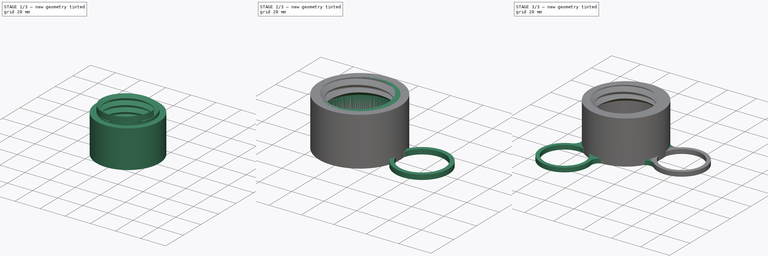
[diagram: build sequence overview — one tinted view per stage of 3, left to right]
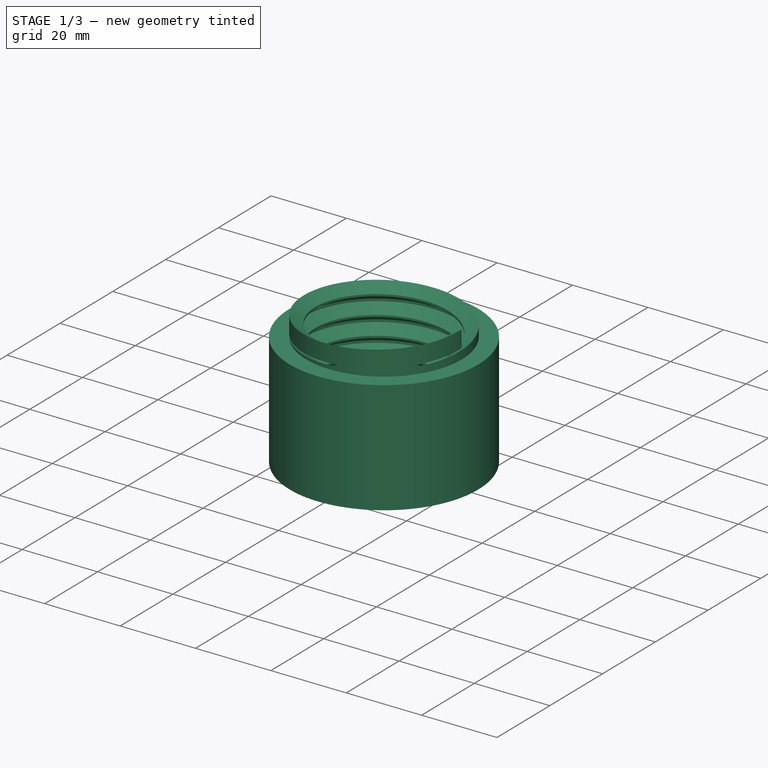
[diagram: stage 1 of 3 — iso view after this stage's code; geometry added in this stage tinted green]
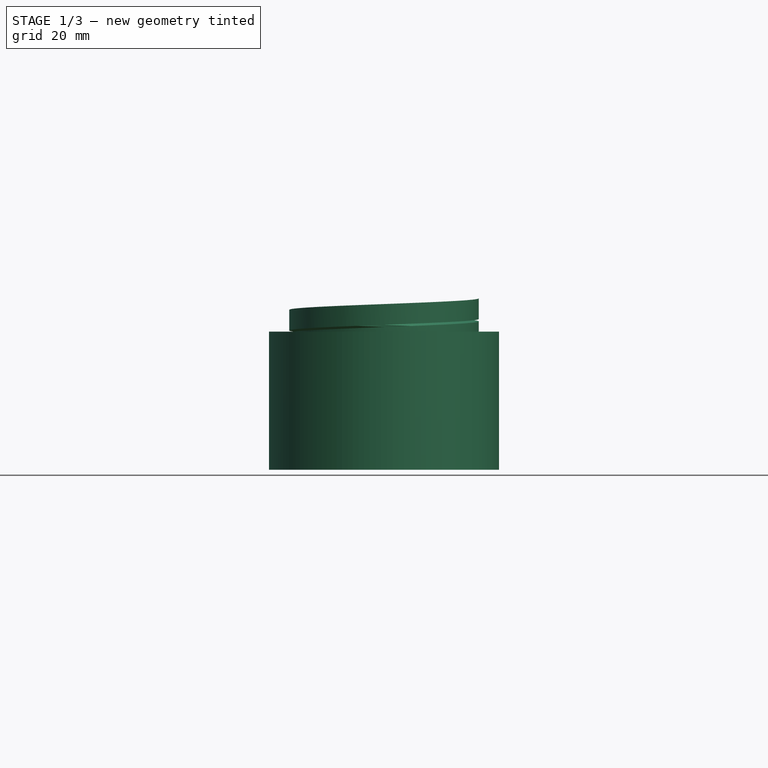
[diagram: stage 1 of 3 — front view after this stage's code; geometry added in this stage tinted green]
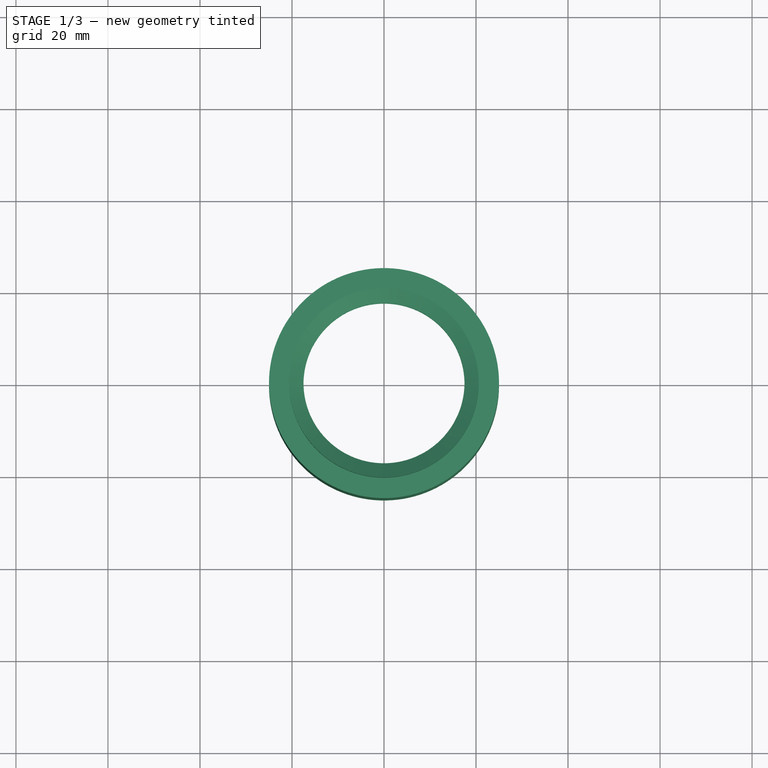
[diagram: stage 1 of 3 — top view after this stage's code; geometry added in this stage tinted green]
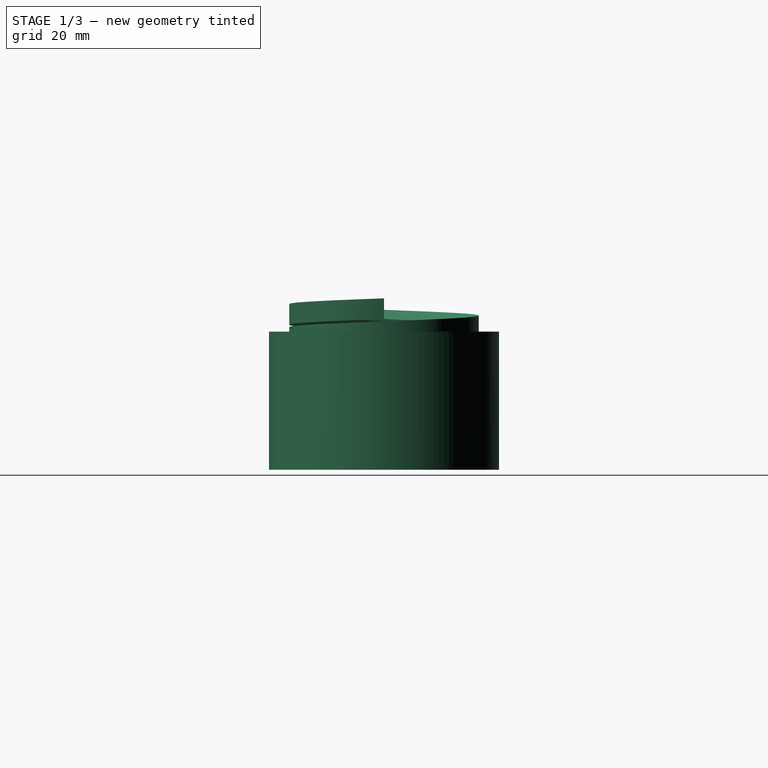
[diagram: stage 1 of 3 — right view after this stage's code; geometry added in this stage tinted green]
FCSTD DOCUMENT  (FreeCAD 2020.11.29R23076 +2859 (Git))
Label: nakretka-rzymska
License: All rights reserved
LicenseURL: http://en.wikipedia.org/wiki/All_rights_reserved
objects: Sketcher::SketchObject×4, PartDesign::Pad×2, Part::Helix×1, PartDesign::ShapeBinder×1, PartDesign::AdditivePipe×1, PartDesign::Mirrored×1, PartDesign::Groove×1, PartDesign::PolarPattern×1, PartDesign::Fillet×1, PartDesign::Body×1
note: 26 computed .brp shape members not serialized (recipe doc carries the construction recipe); baked Part::Feature solids carry a one-line shape summary decoded from their .brp

FEATURE [Sketcher::SketchObject] Sketch
  MapMode = 5
  Support = -> [XY_Plane]
  sketch-geometry (2):
    g0: Circle CenterX=0 CenterY=0 CenterZ=0 NormalX=0 NormalY=0 NormalZ=1 AngleXU=0 Radius=20.5
    g1: Circle CenterX=0 CenterY=0 CenterZ=0 NormalX=0 NormalY=0 NormalZ=1 AngleXU=0 Radius=25
  constraints (4):
    c: Coincident(g0,g-1)
    c: Diameter(g0) = 41
    c: Coincident(g1,g0)
    c: Diameter(g1) = 50
FEATURE [PartDesign::Pad] Pad
  ClaimChildren = false
  Direction = (1,1,1)
  Fit = 0
  FitJoin = 0
  InnerFit = 0
  InnerFitJoin = 0
  InnerTaperAngle = 0
  InnerTaperAngleRev = 0
  Length = 30
  Length2 = 100
  Midplane = true
  NewSolid = false
  Profile = -> Sketch
  Suppress = false
  Type = 0
FEATURE [Sketcher::SketchObject] Sketch001
  MapMode = 5
  Placement = pos=(0,0,0) rot=(1,0,0;1.5708rad)
  Support = -> [XZ_Plane]
  sketch-geometry (4):
    g0: LineSegment StartX=20.6 StartY=2.25 StartZ=0 EndX=20.6 EndY=-2.25 EndZ=0
    g1: LineSegment StartX=20.6 StartY=-2.25 StartZ=0 EndX=17.5 EndY=-0.25 EndZ=0
    g2: LineSegment StartX=17.5 StartY=-0.25 StartZ=0 EndX=17.5 EndY=0.25 EndZ=0
    g3: LineSegment StartX=17.5 StartY=0.25 StartZ=0 EndX=20.6 EndY=2.25 EndZ=0
  constraints (12):
    c: Vertical(g0)
    c: Coincident(g0,g1)
    c: Coincident(g1,g2)
    c: Coincident(g2,g3)
    c: Coincident(g3,g0)
    c: Vertical(g2)
    c: DistanceY(g2,g2) = 0.5
    c: DistanceY(g0,g0) = 4.5
    c: Equal(g1,g3)
    c: DistanceY(g-1,g2) = 0.25
    c: DistanceX(g0) = 20.6
    c: DistanceX(g1) = 17.5
FEATURE [Part::Helix] Helix  label="Helisa"
  Angle = 0
  AttacherType = Attacher::AttachEngine3D
  Height = 20
  LocalCoord = 0
  Pitch = 5
  Radius = 20.6
  Style = 1
FEATURE [PartDesign::ShapeBinder] ReferenceHelix
  Support = -> [Helix]
  TraceSupport = false
FEATURE [PartDesign::AdditivePipe] AdditivePipe
  AuxilleryCurvelinear = true
  AuxillerySpineTangent = false
  BaseFeature = -> Pad
  Binormal = (0,0,0)
  ClaimChildren = false
  Fit = 0
  FitJoin = 0
  InnerFit = 0
  InnerFitJoin = 0
  Mode = 2
  NewSolid = false
  Profile = -> Sketch001
  Spine = -> ReferenceHelix
  SpineTangent = false
  Suppress = false
  Transformation = 0
  Transition = 0
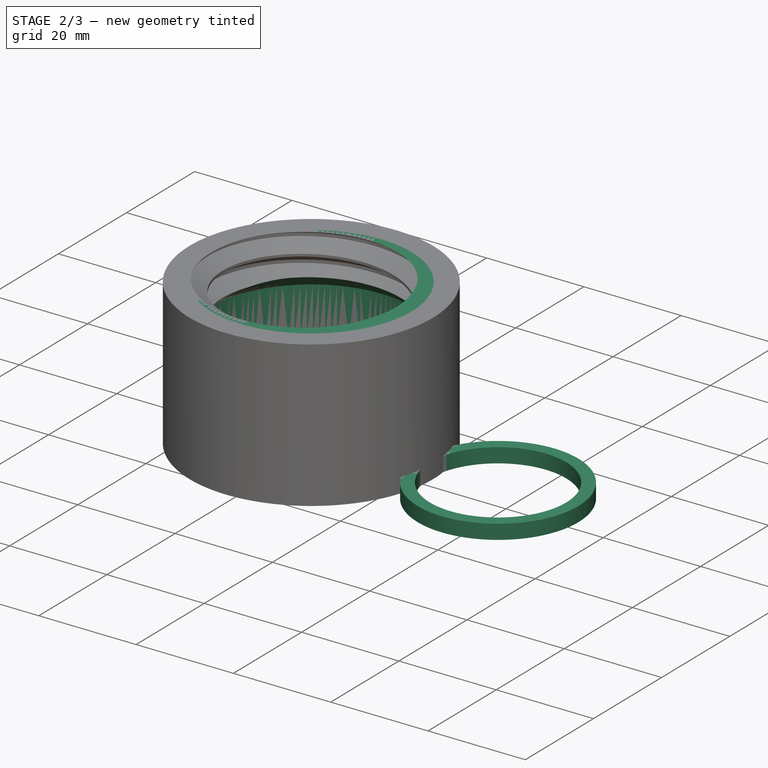
[diagram: stage 2 of 3 — iso view after this stage's code; geometry added in this stage tinted green]
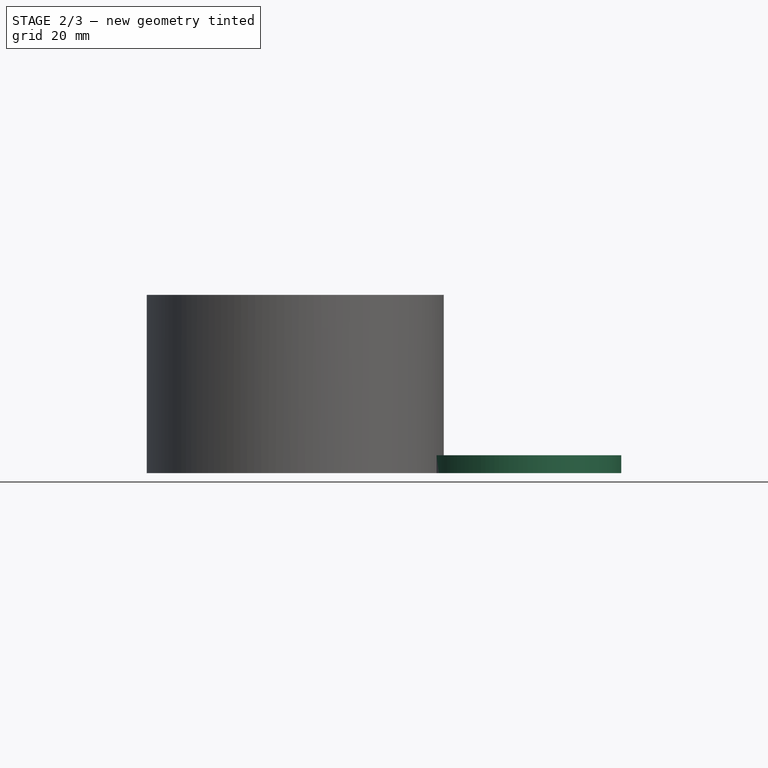
[diagram: stage 2 of 3 — front view after this stage's code; geometry added in this stage tinted green]
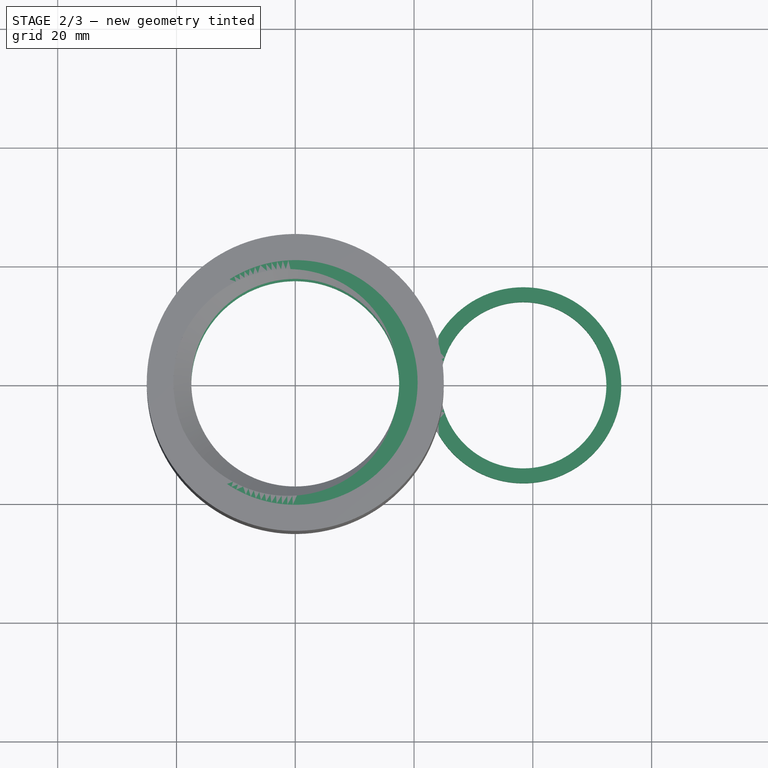
[diagram: stage 2 of 3 — top view after this stage's code; geometry added in this stage tinted green]
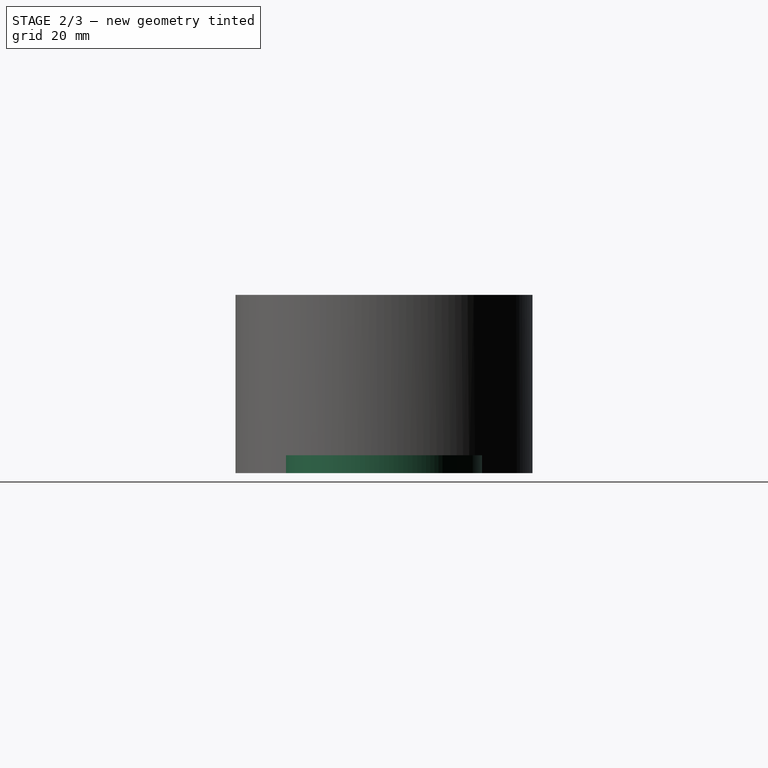
[diagram: stage 2 of 3 — right view after this stage's code; geometry added in this stage tinted green]
FEATURE [PartDesign::Mirrored] Mirrored
  BaseFeature = -> AdditivePipe
  CopyShape = false
  MirrorPlane = -> XY_Plane
  NewSolid = false
  OriginalSubs = -> [AdditivePipe]
  Originals = -> [AdditivePipe]
  SubTransform = true
  Suppress = false
FEATURE [Sketcher::SketchObject] Sketch002
  MapMode = 5
  Placement = pos=(0,0,0) rot=(0.57735,0.57735,0.57735;2.0944rad)
  Support = -> [YZ_Plane]
  sketch-geometry (14):
    g0: LineSegment StartX=0 StartY=15 StartZ=0 EndX=30 EndY=15 EndZ=0
    g1: LineSegment StartX=30 StartY=15 StartZ=0 EndX=30 EndY=25 EndZ=0
    g2: LineSegment StartX=30 StartY=25 StartZ=0 EndX=0 EndY=25 EndZ=0
    g3: LineSegment StartX=0 StartY=25 StartZ=0 EndX=0 EndY=15 EndZ=0
    g4: LineSegment StartX=0 StartY=-15 StartZ=0 EndX=30 EndY=-15 EndZ=0
    g5: LineSegment StartX=30 StartY=-15 StartZ=0 EndX=30 EndY=-25 EndZ=0
    g6: LineSegment StartX=30 StartY=-25 StartZ=0 EndX=0 EndY=-25 EndZ=0
    g7: LineSegment StartX=0 StartY=-25 StartZ=0 EndX=0 EndY=-15 EndZ=0
    g8: LineSegment StartX=0 StartY=7.5 StartZ=0 EndX=18 EndY=7.5 EndZ=0
    g9: LineSegment StartX=20.6 StartY=4.9 StartZ=0 EndX=20.6 EndY=-4.9 EndZ=0
    g10: LineSegment StartX=18 StartY=-7.5 StartZ=0 EndX=0 EndY=-7.5 EndZ=0
    g11: LineSegment StartX=0 StartY=-7.5 StartZ=0 EndX=0 EndY=7.5 EndZ=0
    g12: LineSegment StartX=18 StartY=7.5 StartZ=0 EndX=20.6 EndY=4.9 EndZ=0
    g13: LineSegment StartX=20.6 StartY=-4.9 StartZ=0 EndX=18 EndY=-7.5 EndZ=0
  constraints (40):
    c: Coincident(g0,g1)
    c: Coincident(g1,g2)
    c: Coincident(g2,g3)
    c: Coincident(g3,g0)
    c: Horizontal(g0)
    c: Horizontal(g2)
    c: Vertical(g1)
    c: Vertical(g3)
    c: PointOnObject(g0,g-2)
    c: Coincident(g4,g5)
    c: Coincident(g5,g6)
    c: Coincident(g6,g7)
    c: Coincident(g7,g4)
    c: Horizontal(g4)
    c: Horizontal(g6)
    c: Vertical(g5)
    c: Vertical(g7)
    c: Coincident(g10,g11)
    c: Coincident(g11,g8)
    c: Horizontal(g8)
    c: Horizontal(g10)
    c: Vertical(g9)
    c: PointOnObject(g8,g-2)
    c: Symmetric(g10,g8,g-1)
    c: Symmetric(g0,g4,g-1)
    c: Equal(g0,g4)
    c: Equal(g1,g5)
    c: DistanceX(g2,g2) = 30
    c: DistanceY(g1,g1) = 10
    c: DistanceY(g4) = -15
    c: Coincident(g10,g13)
    c: Coincident(g9,g13)
    c: Coincident(g9,g12)
    c: Coincident(g8,g12)
    c: Angle(g8,g12) = 2.35619
    c: Angle(g13,g10) = 2.35619
    c: DistanceX(g9) = 20.6
    c: DistanceX(g10) = 18
    c: DistanceY(g11,g11) = 15
    c: Equal(g12,g13)
FEATURE [PartDesign::Groove] Groove
  Angle = 360
  Axis = (-2e-16,3e-16,1)
  Base = (0,0,0)
  BaseFeature = -> Mirrored
  ClaimChildren = false
  Fit = 0
  FitJoin = 0
  InnerFit = 0
  InnerFitJoin = 0
  NewSolid = false
  Profile = -> Sketch002
  ReferenceAxis = -> Sketch002 [V_Axis]
  Suppress = false
FEATURE [Sketcher::SketchObject] Sketch003
  MapMode = 5
  Placement = pos=(0,0,-15) rot=(1,0,0;3.14159rad)
  Support = -> [Groove]
  sketch-geometry (2):
    g0: Circle CenterX=38.3826 CenterY=0 CenterZ=0 NormalX=0 NormalY=0 NormalZ=1 AngleXU=0 Radius=16.5
    g1: Circle CenterX=38.3826 CenterY=0 CenterZ=0 NormalX=0 NormalY=0 NormalZ=1 AngleXU=0 Radius=14
  constraints (4):
    c: PointOnObject(g0,g-1)
    c: Coincident(g1,g0)
    c: Diameter(g0) = 33
    c: Diameter(g1) = 28
FEATURE [PartDesign::Pad] Pad001
  BaseFeature = -> Groove
  ClaimChildren = false
  Direction = (1,1,1)
  Fit = 0
  FitJoin = 0
  InnerFit = 0
  InnerFitJoin = 0
  InnerTaperAngle = 0
  InnerTaperAngleRev = 0
  Length = 3
  Length2 = 100
  NewSolid = false
  Profile = -> Sketch003
  Reversed = true
  Suppress = false
  Type = 0
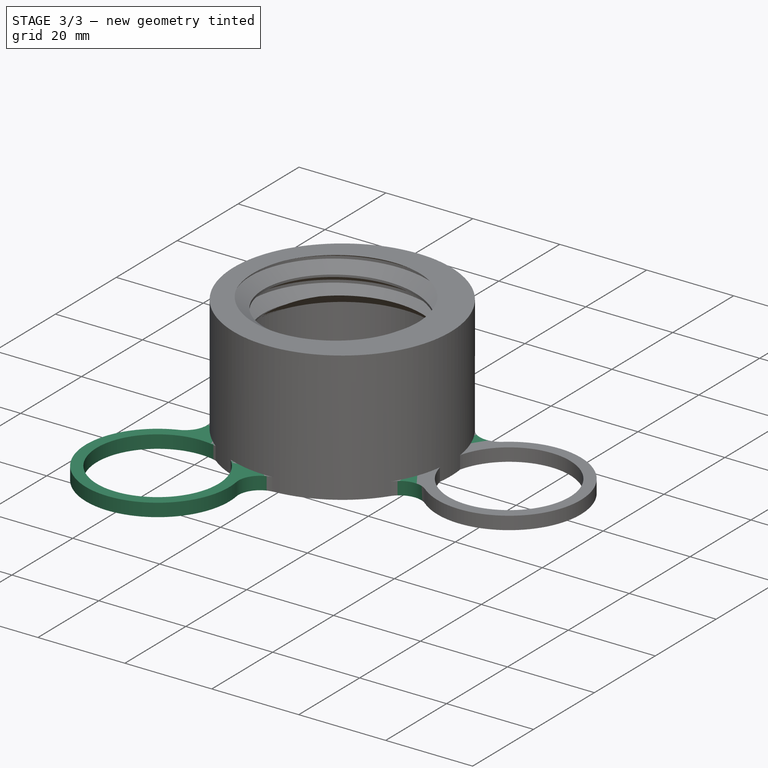
[diagram: stage 3 of 3 — iso view after this stage's code; geometry added in this stage tinted green]
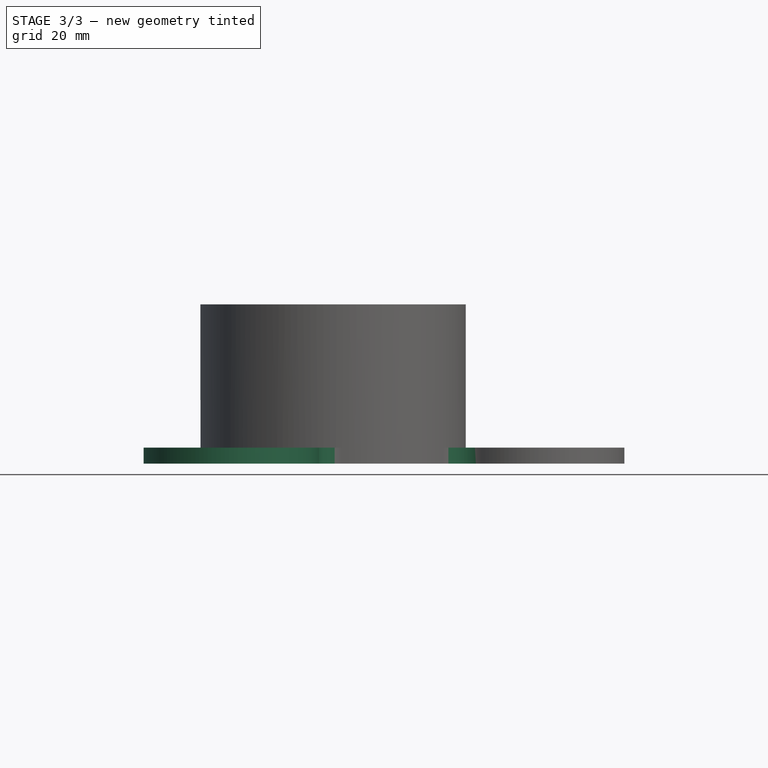
[diagram: stage 3 of 3 — front view after this stage's code; geometry added in this stage tinted green]
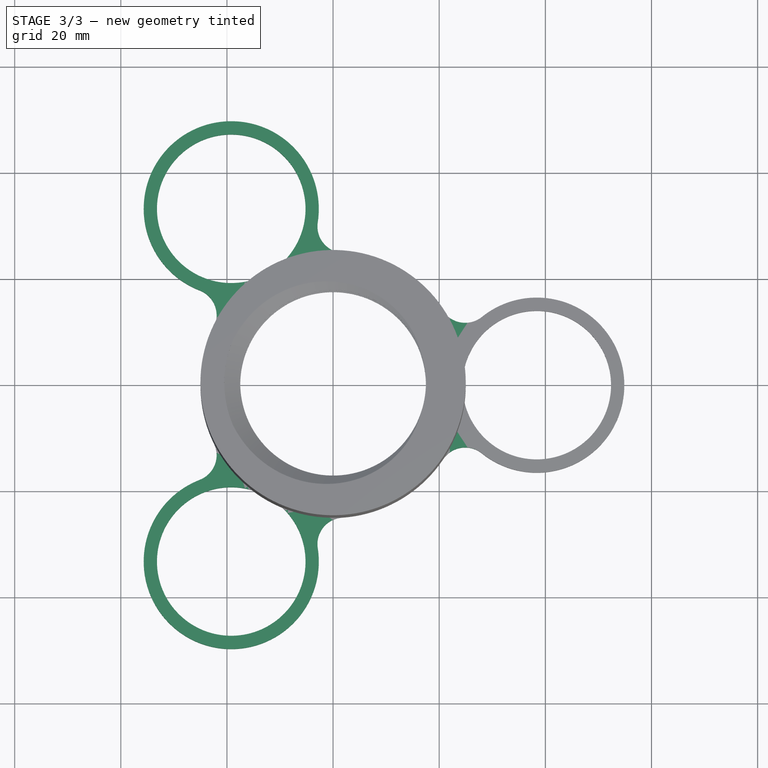
[diagram: stage 3 of 3 — top view after this stage's code; geometry added in this stage tinted green]
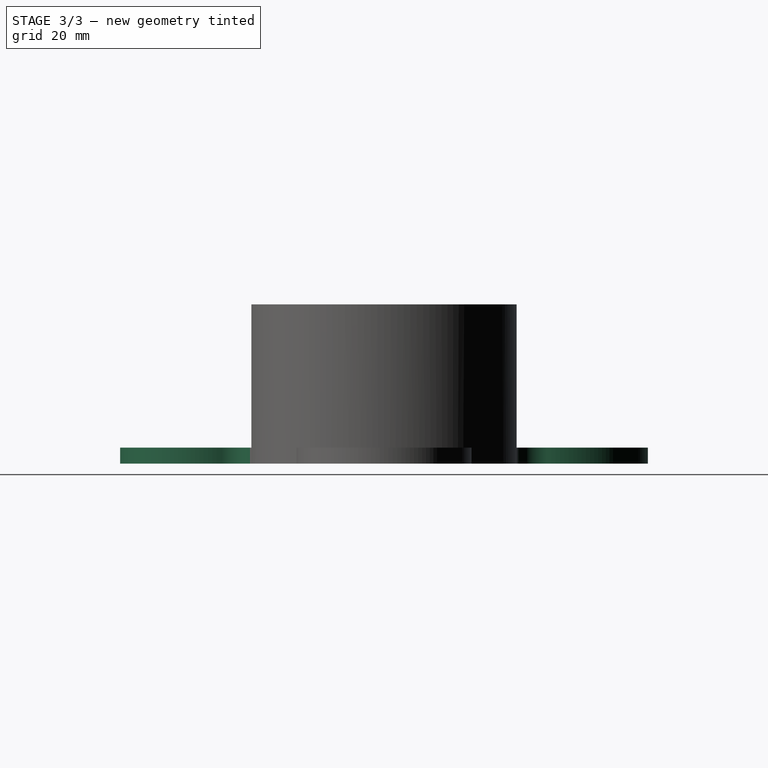
[diagram: stage 3 of 3 — right view after this stage's code; geometry added in this stage tinted green]
FEATURE [PartDesign::PolarPattern] PolarPattern
  Angle = 360
  Axis = -> Sketch003 [N_Axis]
  BaseFeature = -> Pad001
  CopyShape = false
  NewSolid = false
  Occurrences = 3
  OriginalSubs = -> [Pad001]
  Originals = -> [Pad001]
  SubTransform = true
  Suppress = false
FEATURE [PartDesign::Fillet] Fillet
  Base = -> PolarPattern [Edge8,Edge6,Edge24,Edge22,Edge16,Edge14]
  BaseFeature = -> PolarPattern
  NewSolid = false
  Radius = 5
  SupportTransform = false
  Suppress = false
FEATURE [PartDesign::Body] Body  label="nakretka-rzymska"
  ExportMode = 0
  Group = -> [Sketch,Pad,Sketch001,AdditivePipe,ReferenceHelix,Mirrored,Sketch002,Groove,Pad001,Sketch003,PolarPattern,Fillet]
  Origin = -> Origin
  Tip = -> Fillet
  _ExportChildren = -> [Pad,AdditivePipe,Mirrored,Groove,Pad001,PolarPattern,Fillet]
  _GroupVersion = 1
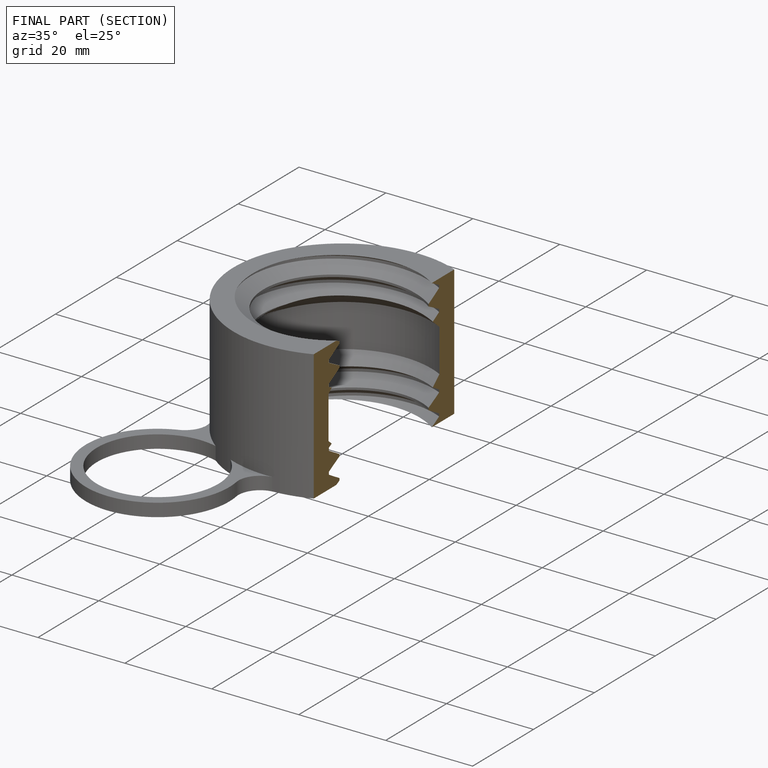
[diagram: finished part — half-section view (interior)]
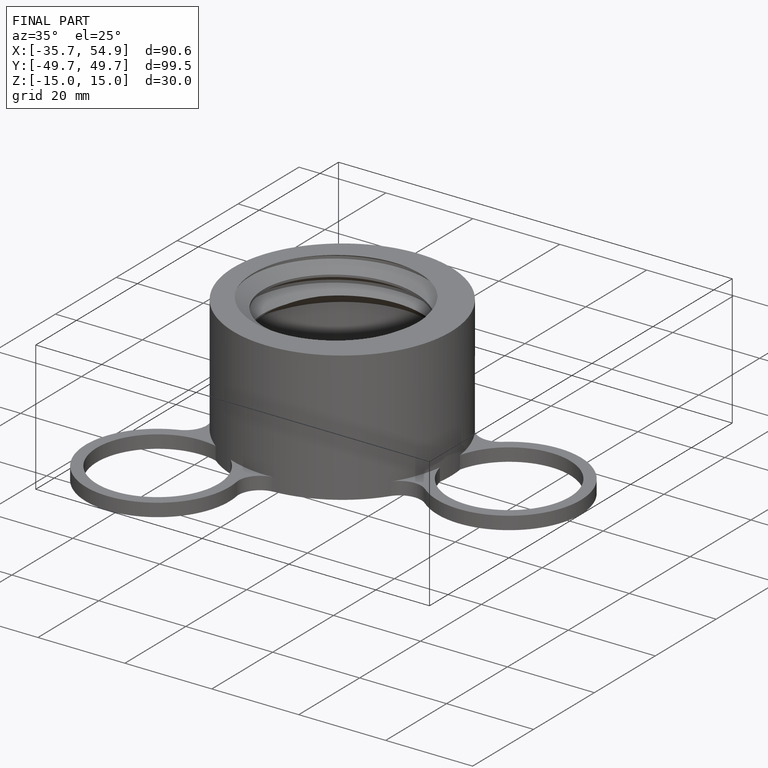
[diagram: finished part — iso view with bounding-box wireframe]
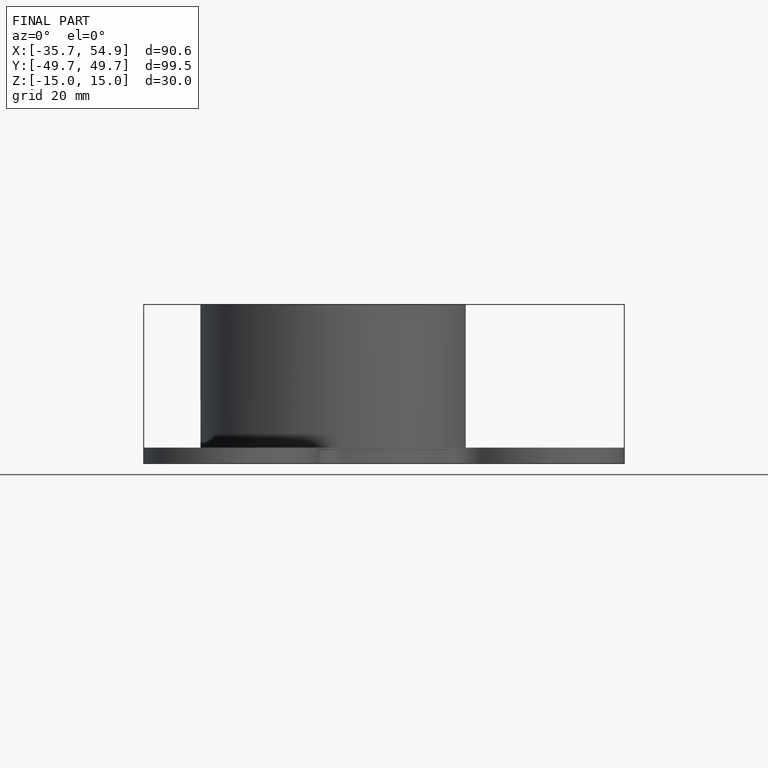
[diagram: finished part — front view with bounding-box wireframe]
